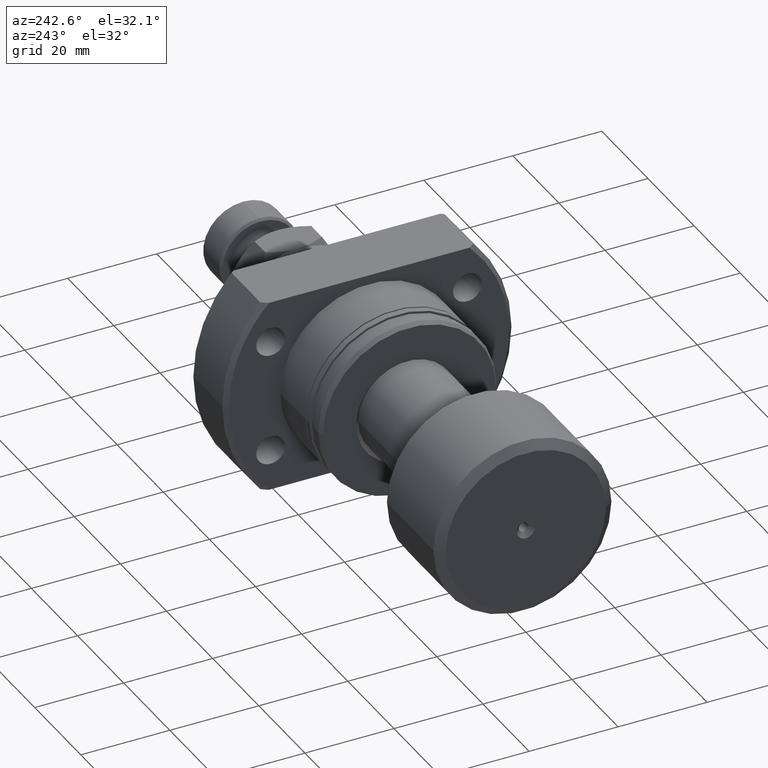
[diagram: clean part render]
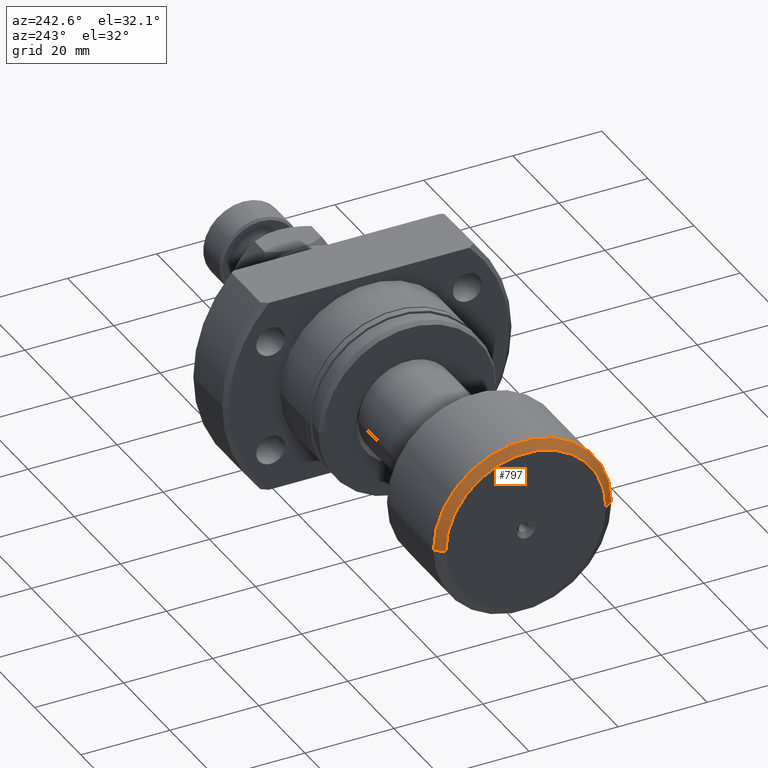
[diagram: same view with one face highlighted and labeled with its STEP entity id]
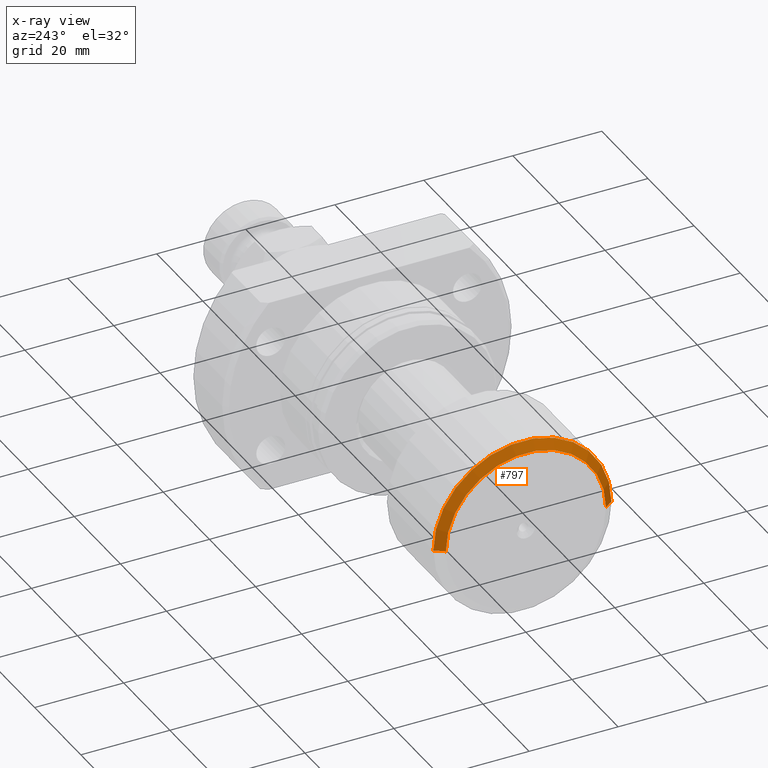
[diagram: x-ray of the same camera — body ghosted, the highlighted face saturated]
A machine part, auxiliary view. The second image highlights one B-rep face of the part: STEP entity #797.
The next image is the same camera in x-ray: the body ghosted, the highlighted face saturated — about 0% of this face is hidden behind the body in this view.
In plain terms, the highlighted conical surface has half-angle 53.13 deg.
Its self-contained STEP definition (entity closure, byte-faithful):
#120 = CARTESIAN_POINT ( 'NONE',  ( 2.011846620492804129E-15, 2.151755106128676308E-32, 0.000000000000000000 ) ) ;
#228 = DIRECTION ( 'NONE',  ( 0.6000000000000005329, 0.7999999999999996003, 0.000000000000000000 ) ) ;
#274 = DIRECTION ( 'NONE',  ( 0.6000000000000005329, -0.7999999999999996003, 9.797174393178821220E-17 ) ) ;
#399 = VERTEX_POINT ( 'NONE', #2692 ) ;
#409 = FACE_OUTER_BOUND ( 'NONE', #3790, .T. ) ;
#797 = ADVANCED_FACE ( 'NONE', ( #409 ), #1941, .T. ) ;
#801 = DIRECTION ( 'NONE',  ( 1.084202172485504434E-17, -1.000000000000000000, 0.000000000000000000 ) ) ;
#809 = DIRECTION ( 'NONE',  ( -1.069542322069065647E-17, 1.000000000000000000, 0.000000000000000000 ) ) ;
#859 = CIRCLE ( 'NONE', #1733, 20.00000000000000000 ) ;
#936 = VECTOR ( 'NONE', #228, 1000.000000000000000 ) ;
#1021 = LINE ( 'NONE', #4301, #936 ) ;
#1062 = EDGE_CURVE ( 'NONE', #2070, #1610, #2157, .T. ) ;
#1250 = AXIS2_PLACEMENT_3D ( 'NONE', #120, #2377, #3186 ) ;
#1384 = VECTOR ( 'NONE', #274, 1000.000000000000000 ) ;
#1610 = VERTEX_POINT ( 'NONE', #2288 ) ;
#1674 = ORIENTED_EDGE ( 'NONE', *, *, #1062, .T. ) ;
#1733 = AXIS2_PLACEMENT_3D ( 'NONE', #1987, #2681, #801 ) ;
#1941 = CONICAL_SURFACE ( 'NONE', #2559, 18.00000000000000355, 0.9272952180016115209 ) ;
#1987 = CARTESIAN_POINT ( 'NONE',  ( 1.500000000000002442, 1.604313483103601552E-17, 0.000000000000000000 ) ) ;
#2070 = VERTEX_POINT ( 'NONE', #2746 ) ;
#2157 = LINE ( 'NONE', #3656, #1384 ) ;
#2288 = CARTESIAN_POINT ( 'NONE',  ( 1.500000000000002887, -20.00000000000000000, 2.449293598294706513E-15 ) ) ;
#2377 = DIRECTION ( 'NONE',  ( -1.000000000000000000, -1.069542322069065801E-17, -0.000000000000000000 ) ) ;
#2452 = VERTEX_POINT ( 'NONE', #4447 ) ;
#2559 = AXIS2_PLACEMENT_3D ( 'NONE', #3055, #4189, #809 ) ;
#2681 = DIRECTION ( 'NONE',  ( -1.000000000000000000, -1.069542322069065801E-17, -0.000000000000000000 ) ) ;
#2692 = CARTESIAN_POINT ( 'NONE',  ( 1.819329002520372041E-15, 18.00000000000000355, 0.000000000000000000 ) ) ;
#2746 = CARTESIAN_POINT ( 'NONE',  ( 2.204364238465235822E-15, -18.00000000000000355, 2.326828918379971365E-15 ) ) ;
#2906 = EDGE_CURVE ( 'NONE', #2070, #399, #3137, .T. ) ;
#3055 = CARTESIAN_POINT ( 'NONE',  ( 2.011846620492804129E-15, 2.151755106128676308E-32, 0.000000000000000000 ) ) ;
#3137 = CIRCLE ( 'NONE', #1250, 18.00000000000000355 ) ;
#3186 = DIRECTION ( 'NONE',  ( 1.069542322069065647E-17, -1.000000000000000000, 0.000000000000000000 ) ) ;
#3387 = ORIENTED_EDGE ( 'NONE', *, *, #4048, .T. ) ;
#3656 = CARTESIAN_POINT ( 'NONE',  ( 2.204364238465235822E-15, -18.00000000000000355, 2.204364238465235822E-15 ) ) ;
#3659 = EDGE_CURVE ( 'NONE', #399, #2452, #1021, .T. ) ;
#3790 = EDGE_LOOP ( 'NONE', ( #4112, #1674, #3387, #4656 ) ) ;
#4048 = EDGE_CURVE ( 'NONE', #1610, #2452, #859, .T. ) ;
#4112 = ORIENTED_EDGE ( 'NONE', *, *, #2906, .F. ) ;
#4189 = DIRECTION ( 'NONE',  ( 1.000000000000000000, 1.069542322069065801E-17, 0.000000000000000000 ) ) ;
#4301 = CARTESIAN_POINT ( 'NONE',  ( 1.819329002520372041E-15, 18.00000000000000355, 0.000000000000000000 ) ) ;
#4447 = CARTESIAN_POINT ( 'NONE',  ( 1.500000000000002442, 20.00000000000000000, 0.000000000000000000 ) ) ;
#4656 = ORIENTED_EDGE ( 'NONE', *, *, #3659, .F. ) ;